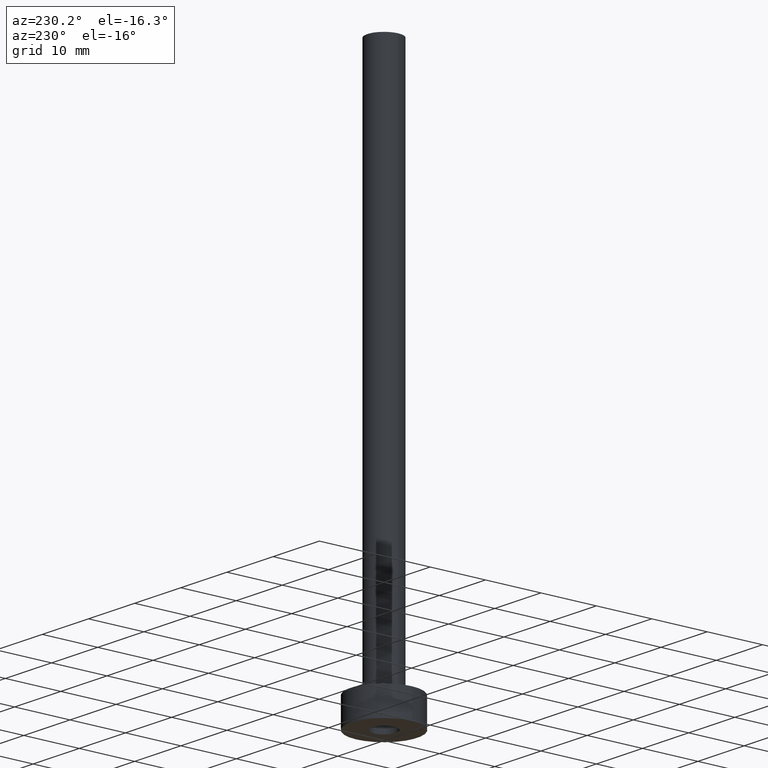
[diagram: clean part render]
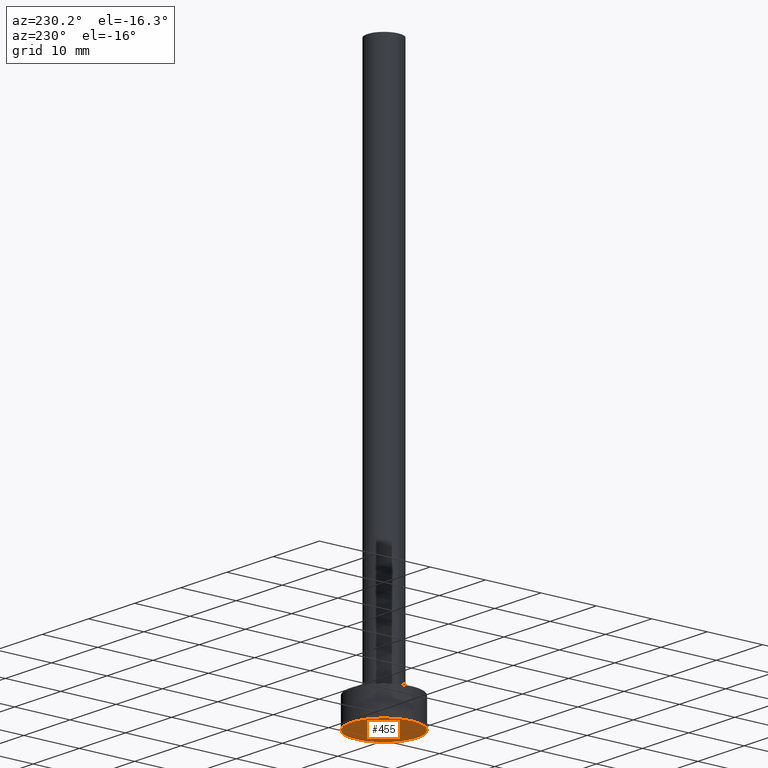
[diagram: same view with one face highlighted and labeled with its STEP entity id]
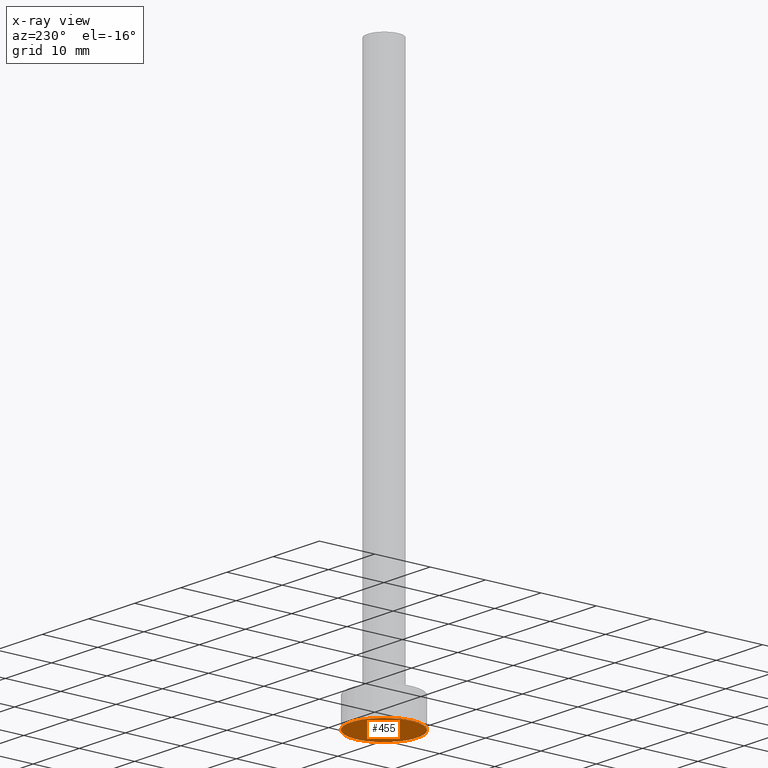
[diagram: x-ray of the same camera — body ghosted, the highlighted face saturated]
A machine part, auxiliary view. The second image highlights one B-rep face of the part: STEP entity #455.
The next image is the same camera in x-ray: the body ghosted, the highlighted face saturated — about 0% of this face is hidden behind the body in this view.
In plain terms, the highlighted planar face has unit normal (0, 0, 1).
Its self-contained STEP definition (entity closure, byte-faithful):
#2 = PLANE ( 'NONE',  #335 ) ;
#16 = DIRECTION ( 'NONE',  ( 1.000000000000000000, 0.000000000000000000, 0.000000000000000000 ) ) ;
#35 = FACE_BOUND ( 'NONE', #255, .T. ) ;
#41 = EDGE_LOOP ( 'NONE', ( #443, #222 ) ) ;
#58 = CIRCLE ( 'NONE', #327, 6.000000000000000888 ) ;
#73 = DIRECTION ( 'NONE',  ( 1.000000000000000000, 0.000000000000000000, -0.000000000000000000 ) ) ;
#76 = ORIENTED_EDGE ( 'NONE', *, *, #291, .F. ) ;
#77 = DIRECTION ( 'NONE',  ( 1.000000000000000000, 0.000000000000000000, 0.000000000000000000 ) ) ;
#79 = VERTEX_POINT ( 'NONE', #198 ) ;
#83 = DIRECTION ( 'NONE',  ( 1.000000000000000000, 0.000000000000000000, 0.000000000000000000 ) ) ;
#92 = DIRECTION ( 'NONE',  ( 0.000000000000000000, 0.000000000000000000, 1.000000000000000000 ) ) ;
#94 = CARTESIAN_POINT ( 'NONE',  ( -6.000000000000000888, 0.000000000000000000, 0.000000000000000000 ) ) ;
#108 = DIRECTION ( 'NONE',  ( 0.000000000000000000, 0.000000000000000000, 1.000000000000000000 ) ) ;
#118 = DIRECTION ( 'NONE',  ( -0.000000000000000000, -0.000000000000000000, -1.000000000000000000 ) ) ;
#126 = EDGE_CURVE ( 'NONE', #359, #79, #293, .T. ) ;
#142 = CARTESIAN_POINT ( 'NONE',  ( 0.000000000000000000, 0.000000000000000000, 0.000000000000000000 ) ) ;
#172 = CARTESIAN_POINT ( 'NONE',  ( 0.000000000000000000, 0.000000000000000000, 0.000000000000000000 ) ) ;
#180 = CARTESIAN_POINT ( 'NONE',  ( 6.000000000000000888, 7.347880794884120722E-16, 0.000000000000000000 ) ) ;
#193 = CARTESIAN_POINT ( 'NONE',  ( 0.000000000000000000, 0.000000000000000000, 0.000000000000000000 ) ) ;
#198 = CARTESIAN_POINT ( 'NONE',  ( 2.149999999999999911, 2.632990618166809235E-16, 0.000000000000000000 ) ) ;
#222 = ORIENTED_EDGE ( 'NONE', *, *, #256, .F. ) ;
#255 = EDGE_LOOP ( 'NONE', ( #305, #76 ) ) ;
#256 = EDGE_CURVE ( 'NONE', #397, #375, #58, .T. ) ;
#264 = DIRECTION ( 'NONE',  ( 0.000000000000000000, 0.000000000000000000, 1.000000000000000000 ) ) ;
#290 = CARTESIAN_POINT ( 'NONE',  ( -2.149999999999999911, 0.000000000000000000, 0.000000000000000000 ) ) ;
#291 = EDGE_CURVE ( 'NONE', #79, #359, #306, .T. ) ;
#293 = CIRCLE ( 'NONE', #352, 2.149999999999999911 ) ;
#295 = CARTESIAN_POINT ( 'NONE',  ( 0.000000000000000000, 0.000000000000000000, 0.000000000000000000 ) ) ;
#304 = DIRECTION ( 'NONE',  ( 1.000000000000000000, 0.000000000000000000, 0.000000000000000000 ) ) ;
#305 = ORIENTED_EDGE ( 'NONE', *, *, #126, .F. ) ;
#306 = CIRCLE ( 'NONE', #349, 2.149999999999999911 ) ;
#315 = AXIS2_PLACEMENT_3D ( 'NONE', #295, #264, #77 ) ;
#325 = DIRECTION ( 'NONE',  ( -0.000000000000000000, -0.000000000000000000, -1.000000000000000000 ) ) ;
#327 = AXIS2_PLACEMENT_3D ( 'NONE', #193, #92, #16 ) ;
#330 = FACE_OUTER_BOUND ( 'NONE', #41, .T. ) ;
#335 = AXIS2_PLACEMENT_3D ( 'NONE', #142, #108, #73 ) ;
#349 = AXIS2_PLACEMENT_3D ( 'NONE', #442, #118, #83 ) ;
#352 = AXIS2_PLACEMENT_3D ( 'NONE', #172, #325, #304 ) ;
#359 = VERTEX_POINT ( 'NONE', #290 ) ;
#363 = CIRCLE ( 'NONE', #315, 6.000000000000000888 ) ;
#375 = VERTEX_POINT ( 'NONE', #94 ) ;
#392 = EDGE_CURVE ( 'NONE', #375, #397, #363, .T. ) ;
#397 = VERTEX_POINT ( 'NONE', #180 ) ;
#442 = CARTESIAN_POINT ( 'NONE',  ( 0.000000000000000000, 0.000000000000000000, 0.000000000000000000 ) ) ;
#443 = ORIENTED_EDGE ( 'NONE', *, *, #392, .F. ) ;
#455 = ADVANCED_FACE ( 'NONE', ( #35, #330 ), #2, .F. ) ;